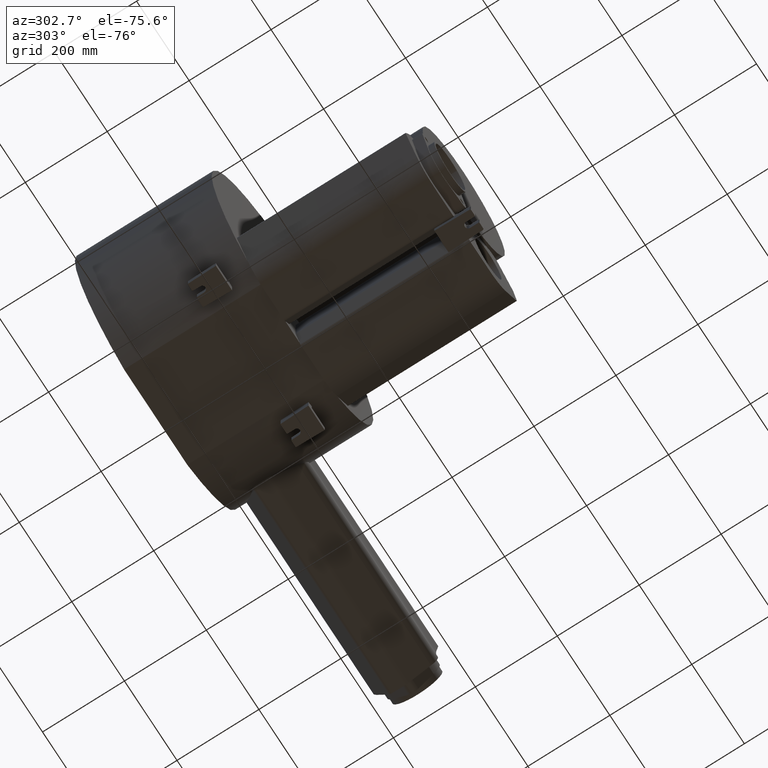
[diagram: clean part render]
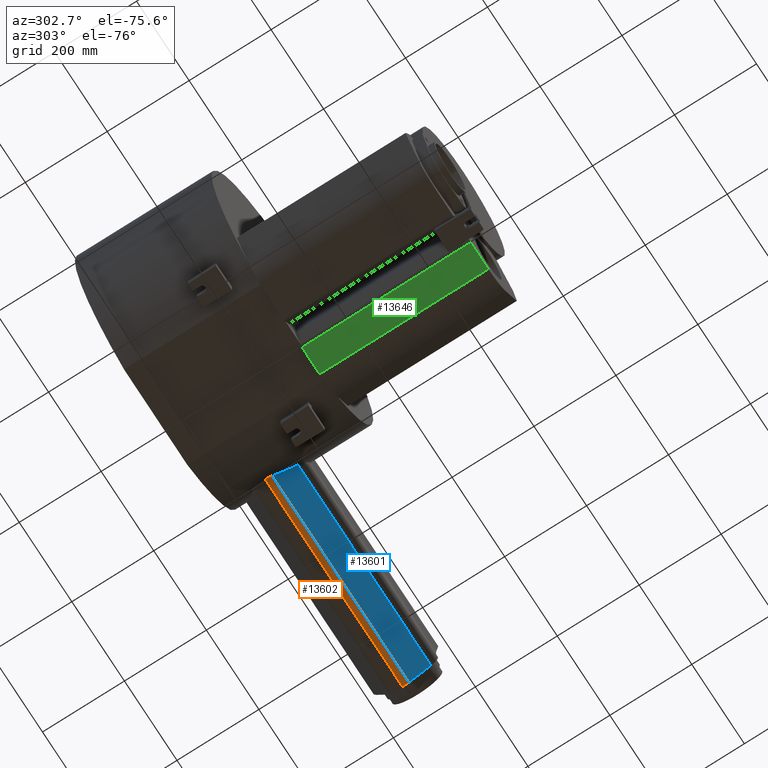
[diagram: same view with three faces highlighted in distinct colors, each labeled with its STEP entity id]
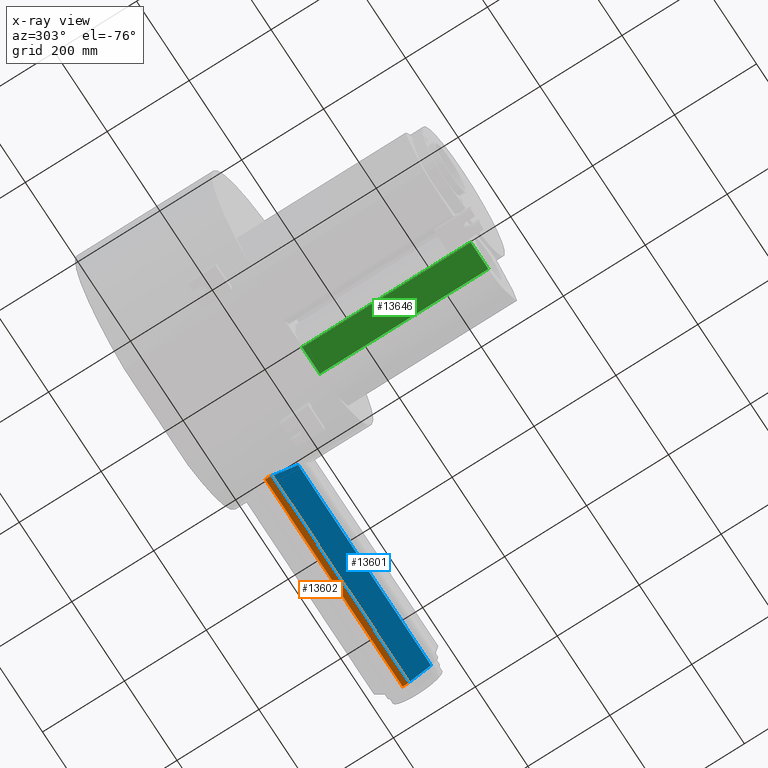
[diagram: x-ray of the same camera — body ghosted, the three highlighted faces saturated]
A machine part, auxiliary view with three faces highlighted in distinct colors.
The next image is the same camera in x-ray (body ghosted, the three faces saturated) — at least one of them is partly hidden behind the body in this view.
Their STEP definitions:

[orange] entity #13602 — the highlighted cylindrical surface (edge-blend (fillet) strip) has radius 30.7145 mm, axis along (-1, -0, 0).
#64=CIRCLE('',#14311,30.7145324151746);
#99=CIRCLE('',#14376,30.7145324151746);
#229=CYLINDRICAL_SURFACE('',#14375,30.7145324151746);
#446=B_SPLINE_CURVE_WITH_KNOTS('',3,(#18737,#18738,#18739,#18740,#18741,
#18742,#18743,#18744),.UNSPECIFIED.,.F.,.F.,(4,2,2,4),(0.553208341512724,
0.578238336287625,1.15647667257525,1.38568747709721),.UNSPECIFIED.);
#1239=FACE_OUTER_BOUND('',#2005,.T.);
#2005=EDGE_LOOP('',(#9137,#9138,#9139,#9140,#9141));
#2913=LINE('',#18734,#4182);
#2914=LINE('',#18747,#4183);
#4182=VECTOR('',#15476,520.750355067404);
#4183=VECTOR('',#15481,522.5);
#5404=VERTEX_POINT('',#18519);
#5405=VERTEX_POINT('',#18521);
#5465=VERTEX_POINT('',#18732);
#5466=VERTEX_POINT('',#18736);
#5467=VERTEX_POINT('',#18745);
#6798=EDGE_CURVE('',#5404,#5405,#64,.T.);
#6872=EDGE_CURVE('',#5404,#5465,#2913,.T.);
#6873=EDGE_CURVE('',#5466,#5465,#446,.T.);
#6874=EDGE_CURVE('',#5467,#5466,#99,.T.);
#6875=EDGE_CURVE('',#5405,#5467,#2914,.T.);
#9137=ORIENTED_EDGE('',*,*,#6873,.F.);
#9138=ORIENTED_EDGE('',*,*,#6874,.F.);
#9139=ORIENTED_EDGE('',*,*,#6875,.F.);
#9140=ORIENTED_EDGE('',*,*,#6798,.F.);
#9141=ORIENTED_EDGE('',*,*,#6872,.T.);
#13602=ADVANCED_FACE('',(#1239),#229,.T.);
#14311=AXIS2_PLACEMENT_3D('',#18522,#15314,#15315);
#14375=AXIS2_PLACEMENT_3D('',#18735,#15477,#15478);
#14376=AXIS2_PLACEMENT_3D('',#18746,#15479,#15480);
#15314=DIRECTION('center_axis',(1.,2.73489687494668E-12,-9.5411880210488E-15));
#15315=DIRECTION('ref_axis',(-1.77443239045581E-13,0.0613990435737018,-0.998113298903604));
#15476=DIRECTION('',(-1.,-2.73485123436501E-12,9.54121459304721E-15));
#15477=DIRECTION('center_axis',(-1.,-2.73485123436501E-12,9.54121459304721E-15));
#15478=DIRECTION('ref_axis',(-1.77440463279383E-13,0.0613990435737018,-0.998113298903604));
#15479=DIRECTION('center_axis',(-1.,-2.73489687494668E-12,9.5411880210488E-15));
#15480=DIRECTION('ref_axis',(-1.77443239045581E-13,0.0613990435737018,-0.998113298903604));
#15481=DIRECTION('',(-1.,-2.73485123436501E-12,9.54121459304721E-15));
#18519=CARTESIAN_POINT('',(752.173978641263,131.399212844275,-451.233270009547));
#18521=CARTESIAN_POINT('',(752.17397864122,146.989978323821,-454.40244527547));
#18522=CARTESIAN_POINT('Origin',(752.173978641225,145.104135409716,-423.745862002278));
#18732=CARTESIAN_POINT('',(231.423623573858,131.399212842851,-451.233270009542));
#18734=CARTESIAN_POINT('',(279.673978641263,131.399212842983,-451.233270009543));
#18735=CARTESIAN_POINT('Origin',(279.673978641225,145.104135408424,-423.745862002274));
#18736=CARTESIAN_POINT('',(229.67397864124,139.499763174093,-453.944761209751));
#18737=CARTESIAN_POINT('Ctrl Pts',(229.67397864124,139.499763174093,-453.944761209751));
#18738=CARTESIAN_POINT('Ctrl Pts',(229.684226176969,139.415166831309,-453.929061650924));
#18739=CARTESIAN_POINT('Ctrl Pts',(229.694706681446,139.330611829656,-453.913002041101));
#18740=CARTESIAN_POINT('Ctrl Pts',(229.952905953345,137.293820397433,-453.517270605227));
#18741=CARTESIAN_POINT('Ctrl Pts',(230.326348586441,135.367456521859,-452.943397243531));
#18742=CARTESIAN_POINT('Ctrl Pts',(230.995822627739,132.807530634625,-451.902413981024));
#18743=CARTESIAN_POINT('Ctrl Pts',(231.202440201857,132.094688546628,-451.580026628569));
#18744=CARTESIAN_POINT('Ctrl Pts',(231.423623573858,131.399212842851,-451.233270009542));
#18745=CARTESIAN_POINT('',(229.67397864122,146.989978322392,-454.402445275465));
#18746=CARTESIAN_POINT('Origin',(229.673978641225,145.104135408287,-423.745862002273));
#18747=CARTESIAN_POINT('',(279.67397864122,146.989978322529,-454.402445275465));

[blue] entity #13601 — the highlighted planar face has unit normal (0, -0.4462, -0.8949).
#19=ELLIPSE('',#14374,689.147908174443,307.5);
#1238=FACE_OUTER_BOUND('',#2004,.T.);
#2004=EDGE_LOOP('',(#9133,#9134,#9135,#9136));
#2878=LINE('',#18520,#4147);
#2912=LINE('',#18730,#4181);
#2913=LINE('',#18734,#4182);
#4147=VECTOR('',#15313,60.2022709763366);
#4181=VECTOR('',#15471,505.458471365416);
#4182=VECTOR('',#15476,520.750355067404);
#5403=VERTEX_POINT('',#18517);
#5404=VERTEX_POINT('',#18519);
#5464=VERTEX_POINT('',#18711);
#5465=VERTEX_POINT('',#18732);
#6797=EDGE_CURVE('',#5403,#5404,#2878,.T.);
#6870=EDGE_CURVE('',#5403,#5464,#2912,.T.);
#6871=EDGE_CURVE('',#5465,#5464,#19,.T.);
#6872=EDGE_CURVE('',#5404,#5465,#2913,.T.);
#9133=ORIENTED_EDGE('',*,*,#6871,.F.);
#9134=ORIENTED_EDGE('',*,*,#6872,.F.);
#9135=ORIENTED_EDGE('',*,*,#6797,.F.);
#9136=ORIENTED_EDGE('',*,*,#6870,.T.);
#12386=PLANE('',#14373);
#13601=ADVANCED_FACE('',(#1238),#12386,.T.);
#14373=AXIS2_PLACEMENT_3D('',#18731,#15472,#15473);
#14374=AXIS2_PLACEMENT_3D('',#18733,#15474,#15475);
#15313=DIRECTION('',(-2.45180315573583E-12,0.894931677152567,-0.4462031972419));
#15471=DIRECTION('',(-1.,-2.73485123436501E-12,9.54121459304721E-15));
#15472=DIRECTION('center_axis',(1.21176062957679E-12,-0.4462031972419,-0.894931677152567));
#15473=DIRECTION('ref_axis',(2.44995135290083E-12,-0.894931677152568,0.446203197241897));
#15474=DIRECTION('center_axis',(1.21176062957679E-12,-0.4462031972419,-0.894931677152567));
#15475=DIRECTION('ref_axis',(6.65708657822729E-16,-0.894931677152567,0.4462031972419));
#15476=DIRECTION('',(-1.,-2.73485123436501E-12,9.54121459304721E-15));
#18517=CARTESIAN_POINT('',(752.17397864141,77.5222935110289,-424.370824218682));
#18519=CARTESIAN_POINT('',(752.173978641263,131.399212844275,-451.233270009547));
#18520=CARTESIAN_POINT('',(752.173978641263,131.399212844275,-451.233270009547));
#18711=CARTESIAN_POINT('',(246.715507275994,77.5222935096465,-424.370824218678));
#18730=CARTESIAN_POINT('',(279.67397864141,77.5222935097367,-424.370824218678));
#18731=CARTESIAN_POINT('Origin',(279.673978641263,131.399212842983,-451.233270009543));
#18732=CARTESIAN_POINT('',(231.423623573858,131.399212842851,-451.233270009542));
#18733=CARTESIAN_POINT('Origin',(-27.8260213586008,-200.268417586348,-285.86739806979));
#18734=CARTESIAN_POINT('',(279.673978641263,131.399212842983,-451.233270009543));

[green] entity #13646 — the highlighted planar face has unit normal (-0, 0, 1).
#1283=FACE_OUTER_BOUND('',#2056,.T.);
#2056=EDGE_LOOP('',(#9389,#9390,#9391,#9392));
#2965=LINE('',#19039,#4234);
#2973=LINE('',#19073,#4242);
#2976=LINE('',#19082,#4245);
#2993=LINE('',#19132,#4262);
#4234=VECTOR('',#15644,67.1271869054439);
#4242=VECTOR('',#15672,67.1271869054439);
#4245=VECTOR('',#15683,412.);
#4262=VECTOR('',#15734,412.);
#5527=VERTEX_POINT('',#19036);
#5528=VERTEX_POINT('',#19038);
#5543=VERTEX_POINT('',#19070);
#5544=VERTEX_POINT('',#19072);
#6961=EDGE_CURVE('',#5528,#5527,#2965,.T.);
#6978=EDGE_CURVE('',#5543,#5544,#2973,.T.);
#6983=EDGE_CURVE('',#5543,#5528,#2976,.T.);
#7006=EDGE_CURVE('',#5544,#5527,#2993,.T.);
#9389=ORIENTED_EDGE('',*,*,#6978,.F.);
#9390=ORIENTED_EDGE('',*,*,#6983,.T.);
#9391=ORIENTED_EDGE('',*,*,#6961,.T.);
#9392=ORIENTED_EDGE('',*,*,#7006,.F.);
#12410=PLANE('',#14464);
#13646=ADVANCED_FACE('',(#1283),#12410,.F.);
#14464=AXIS2_PLACEMENT_3D('',#19133,#15735,#15736);
#15644=DIRECTION('',(-0.999999999931385,2.76894723504479E-17,-1.17145557175858E-5));
#15672=DIRECTION('',(-0.999999999931385,2.76894723504479E-17,-1.17145557175858E-5));
#15683=DIRECTION('',(-2.7755575615627E-17,-1.,5.64283143708145E-15));
#15734=DIRECTION('',(-2.7755575615627E-17,-1.,5.64283143708145E-15));
#15735=DIRECTION('center_axis',(-1.17145557175858E-5,5.6428317618385E-15,
0.999999999931385));
#15736=DIRECTION('ref_axis',(-0.999999999931385,0.,-1.17145557169351E-5));
#19036=CARTESIAN_POINT('',(8.55018653796455,-496.984342737878,-575.659352008567));
#19038=CARTESIAN_POINT('',(75.6773734388025,-496.984342737878,-575.658565643395));
#19039=CARTESIAN_POINT('',(75.6773734388025,-496.984342737878,-575.658565643395));
#19070=CARTESIAN_POINT('',(75.6773734388025,-84.9843427378775,-575.658565643398));
#19072=CARTESIAN_POINT('',(8.55018653796455,-84.9843427378775,-575.659352008569));
#19073=CARTESIAN_POINT('',(75.6773734388025,-84.9843427378775,-575.658565643398));
#19082=CARTESIAN_POINT('',(75.6773734388025,-84.9843427378775,-575.658565643398));
#19132=CARTESIAN_POINT('',(8.55018653796455,-84.9843427378775,-575.659352008569));
#19133=CARTESIAN_POINT('Origin',(75.6773734388025,-84.9843427378775,-575.658565643398));